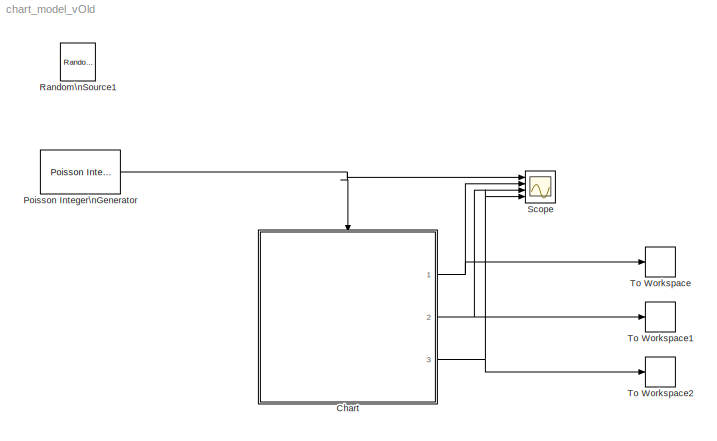
MODEL chart_model_vOld
KIND model
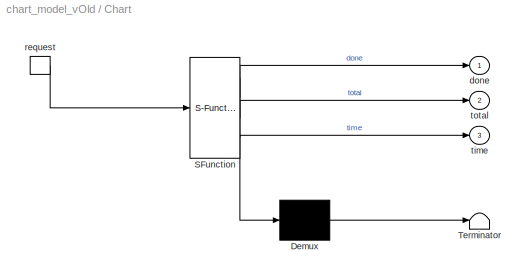
BLOCK [SubSystem] Chart
  ErrorFcn = Stateflow.Translate.translate
  PermitHierarchicalResolution = ExplicitOnly
  Ports = [0, 3, 0, 1]
  RequestExecContextInheritance = off
  SFBlockType = Chart
  SID = 1
  TreatAsAtomicUnit = on
  Variant = off
BLOCK [Demux] Chart/ Demux 
  Outputs = 1
  Ports = [1, 1]
  SID = 1::95
BLOCK [S-Function] Chart/ SFunction 
  EnableBusSupport = on
  FunctionName = sf_sfun
  PortCounts = [1 4]
  Ports = [1, 4]
  SFunctionDeploymentMode = off
  SID = 1::94
  Tag = Stateflow S-Function chart_model_vOld 3
BLOCK [Terminator] Chart/ Terminator 
  SID = 1::96
BLOCK [Outport] Chart/done
  IconDisplay = Port number
  SID = 1::91
BLOCK [TriggerPort] Chart/request
  Ports = [0, 1]
  SID = 1::90
  ShowOutputPort = on
  StatesWhenEnabling = held
  VariantControl = Variant
BLOCK [Outport] Chart/time
  IconDisplay = Port number
  Port = 3
  SID = 1::92
BLOCK [Outport] Chart/total
  IconDisplay = Port number
  Port = 2
  SID = 1::93
BLOCK [Reference] Poisson Integer\nGenerator  REF=commrandsrc3/Poisson Integer\nGenerator
  OutputDataType = uint8
  PoissonParameter = 1/Li
  Ports = [0, 1]
  SID = 13
  SampleTime = Ts
  SamplesPerFrame = 1
  Seed = 0
  SeedSource = Auto
  SimulateUsing = Interpreted execution
  SourceBlock = commrandsrc3/Poisson Integer\nGenerator
  SourceType = Poisson Integer Generator
BLOCK [Reference] Random\nSource1  REF=dspsrcs4/Random\nSource
  CltLength = 12
  Commented = on
  DataType = Single
  IsInherit = off
  MaxVal = 1
  MeanVal = Li
  MinVal = 0
  NormMethod = Sum of uniform values
  OutComplex = Real
  OutputFrames = on
  Ports = [0, 1]
  RepMode = Repeatable
  SID = 12
  SampFrame = 1
  SampMode = Discrete
  SampTime = Ts
  SourceBlock = dspsrcs4/Random\nSource
  SourceType = Random Source
  SrcType = Gaussian
  UserData = DataTag0
  UserDataPersistent = on
  VarVal = 1
  rawSeed = 1
BLOCK [Scope] Scope
  NumInputPorts = 4
  Ports = [4]
  SID = 2
  ScopeSpecificationString = Simulink.scopes.TimeScopeBlockCfg('CurrentConfiguration', extmgr.ConfigurationSet(extmgr.Configuration('Core','General UI',true),extmgr.Configuration('Core','Source UI',true),extmgr.Configuration('Sources','WiredSimulink',true,'DataLoggingSaveFormat','StructureWithTime','DataLoggingDecimation','1','DataLoggingDecimateData',true),extmgr.Configuration('Visuals','Time Domain',true,'SerializedDisplays...<+3730ch>
BLOCK [ToWorkspace] To Workspace
  FixptAsFi = on
  MaxDataPoints = inf
  Ports = [1]
  SID = 3
  SampleTime = Ts
  VariableName = done
BLOCK [ToWorkspace] To Workspace1
  FixptAsFi = on
  MaxDataPoints = inf
  Ports = [1]
  SID = 4
  SampleTime = Ts
  VariableName = total
BLOCK [ToWorkspace] To Workspace2
  FixptAsFi = on
  MaxDataPoints = inf
  Ports = [1]
  SID = 5
  SampleTime = Ts
  VariableName = time
LINE Chart/ Demux :1 -> Chart/ Terminator :1
LINE Chart/ SFunction :1 -> Chart/ Demux :1
LINE Chart/ SFunction :2 -> Chart/done:1
LINE Chart/ SFunction :3 -> Chart/total:1
LINE Chart/ SFunction :4 -> Chart/time:1
LINE Chart/request:1 -> Chart/ SFunction :1
NET Chart:1 -> Scope:2, To Workspace:1
NET Chart:2 -> Scope:3, To Workspace1:1
NET Chart:3 -> Scope:4, To Workspace2:1
NET Poisson Integer\nGenerator:1 -> Chart:trigger, Scope:1
note: NET lines group one-source signal fan-out (src -> all destinations, sorted); 1:1 wires keep LINE
CHART Chart states=18 transitions=31
  STATE_LABEL 'Q1'
  STATE_LABEL 'Q2'
  STATE_LABEL 'Active'
  STATE_LABEL 'ProcessQ1'
  STATE_LABEL 'free/'
  STATE_LABEL "busy/\\nentry:bt1=ml('prand(1/Lo)');\\nto1=t;\\nduring: time++;\\nexit: done++;"
  STATE_LABEL 'QueueQ1'
  STATE_LABEL 'empty/'
  STATE_LABEL 'stored/\\non setrequest: nq1++;\\non getrequest: nq1--;\\nduring:time=time+nq1;'
  STATE_LABEL 'full/\\nduring:time=time+nq1;'
  STATE_LABEL 'free/'
  STATE_LABEL 'ProcessQ2'
  STATE_LABEL 'QueueQ2'
  STATE_LABEL "busy/\\nentry:bt2=ml('prand(1/Lo)');\\nto2=t;\\nduring: time++;\\nexit: done++;\\n"
  STATE_LABEL 'full/\\nduring:time=time+nq2;'
  STATE_LABEL 'stored/\\non setrequest: nq2++;\\non getrequest: nq2--;\\nduring:time=time+nq2;'
  STATE_LABEL 'empty/'
  STATE_LABEL 'main/'
